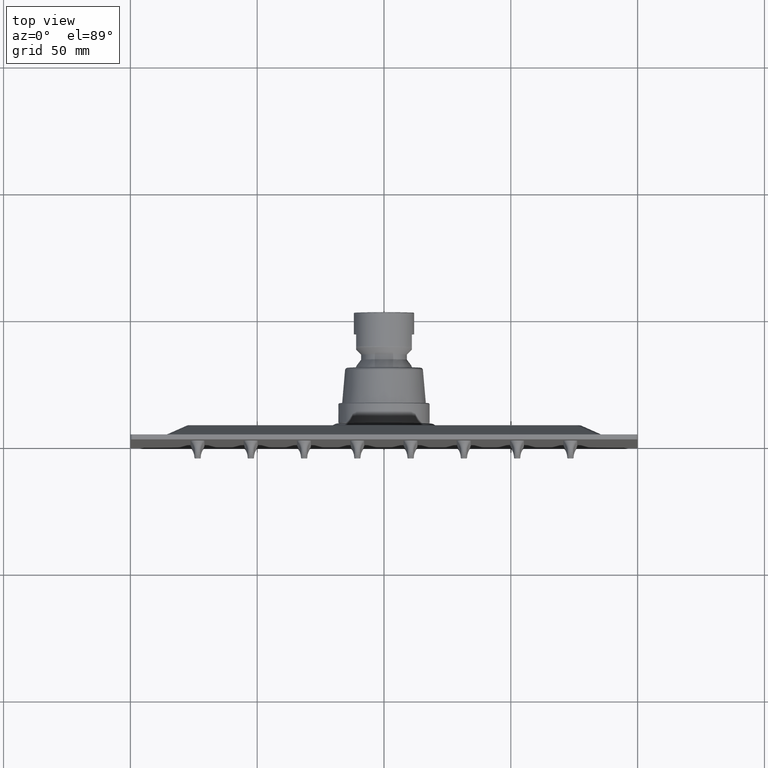
[diagram: clean part render]
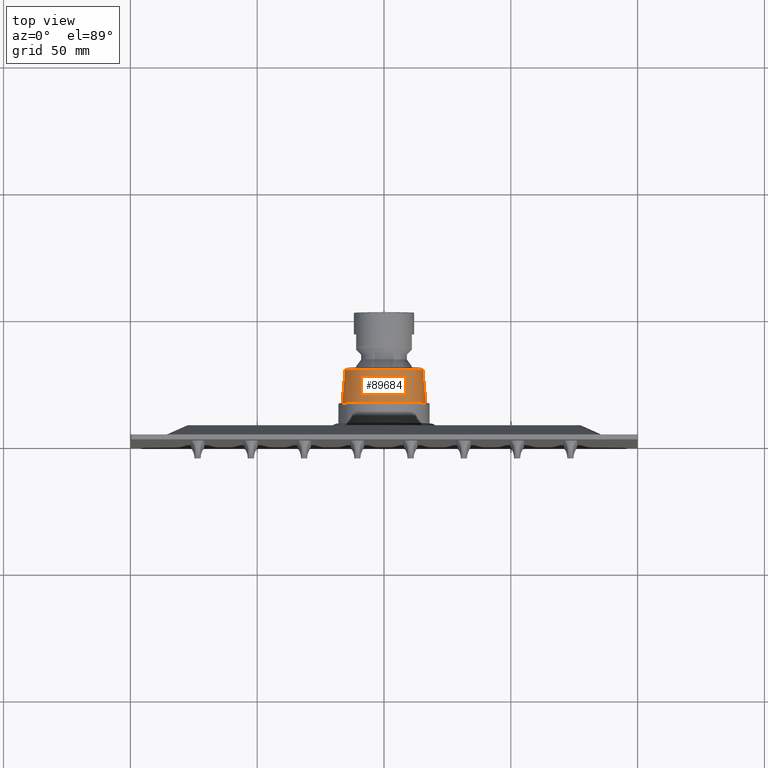
[diagram: same view with one face highlighted and labeled with its STEP entity id]
A machine part, top view. The second image highlights one B-rep face of the part: STEP entity #89684.
In plain terms, the highlighted conical surface has half-angle 5 deg.
Its self-contained STEP definition (entity closure, byte-faithful):
#84353=DIRECTION('',(-8.715574274769E-2,-9.961946980917E-1,1.613819912864E-13));
#84354=VECTOR('',#84353,1.313714655159E1);
#84355=CARTESIAN_POINT('',(1.65E1,1.5E1,0.E0));
#84356=LINE('',#84355,#84354);
#84360=DIRECTION('',(8.715574274769E-2,-9.961946980917E-1,-1.631440329811E-13));
#84361=VECTOR('',#84360,1.313714655159E1);
#84362=CARTESIAN_POINT('',(-1.65E1,1.5E1,8.691968592710E-14));
#84363=LINE('',#84362,#84361);
#84367=CARTESIAN_POINT('',(0.E0,1.912844257252E0,0.E0));
#84368=DIRECTION('',(0.E0,1.E0,0.E0));
#84369=DIRECTION('',(1.E0,0.E0,0.E0));
#84370=AXIS2_PLACEMENT_3D('',#84367,#84368,#84369);
#84375=CARTESIAN_POINT('',(0.E0,1.912844257252E0,0.E0));
#84376=DIRECTION('',(0.E0,1.E0,0.E0));
#84377=DIRECTION('',(-9.999864029949E-1,0.E0,-5.214769925553E-3));
#84378=AXIS2_PLACEMENT_3D('',#84375,#84376,#84377);
#84431=CARTESIAN_POINT('',(0.E0,1.5E1,0.E0));
#84432=DIRECTION('',(0.E0,-1.E0,0.E0));
#84433=DIRECTION('',(-1.E0,0.E0,0.E0));
#84434=AXIS2_PLACEMENT_3D('',#84431,#84432,#84433);
#85791=CARTESIAN_POINT('',(-1.65E1,1.5E1,0.E0));
#85792=CARTESIAN_POINT('',(1.65E1,1.5E1,0.E0));
#85793=VERTEX_POINT('',#85791);
#85794=VERTEX_POINT('',#85792);
#85795=CARTESIAN_POINT('',(-1.535502223471E1,1.912844257252E0,
-2.056327384363E-12));
#85796=VERTEX_POINT('',#85795);
#85797=CARTESIAN_POINT('',(1.535502223471E1,1.912844257252E0,0.E0));
#85798=CARTESIAN_POINT('',(-1.535481345240E1,1.912844257252E0,
-8.007290815577E-2));
#85799=VERTEX_POINT('',#85797);
#85800=VERTEX_POINT('',#85798);
#89669=CARTESIAN_POINT('',(0.E0,8.456422128625E0,0.E0));
#89670=DIRECTION('',(0.E0,1.E0,0.E0));
#89671=DIRECTION('',(1.E0,0.E0,0.E0));
#89672=AXIS2_PLACEMENT_3D('',#89669,#89670,#89671);
#89673=CONICAL_SURFACE('',#89672,1.592751111736E1,4.999999999999E0);
#89674=ORIENTED_EDGE('',*,*,#89658,.T.);
#89676=ORIENTED_EDGE('',*,*,#89675,.F.);
#89678=ORIENTED_EDGE('',*,*,#89677,.F.);
#89679=ORIENTED_EDGE('',*,*,#89662,.F.);
#89681=ORIENTED_EDGE('',*,*,#89680,.F.);
#89682=EDGE_LOOP('',(#89674,#89676,#89678,#89679,#89681));
#89683=FACE_OUTER_BOUND('',#89682,.F.);
#89684=ADVANCED_FACE('',(#89683),#89673,.T.);
#84371=CIRCLE('',#84370,1.535502223471E1);
#84379=CIRCLE('',#84378,1.535502223471E1);
#84435=CIRCLE('',#84434,1.65E1);
#89658=EDGE_CURVE('',#85793,#85796,#84363,.T.);
#89662=EDGE_CURVE('',#85794,#85799,#84356,.T.);
#89675=EDGE_CURVE('',#85800,#85796,#84379,.T.);
#89677=EDGE_CURVE('',#85799,#85800,#84371,.T.);
#89680=EDGE_CURVE('',#85793,#85794,#84435,.T.);